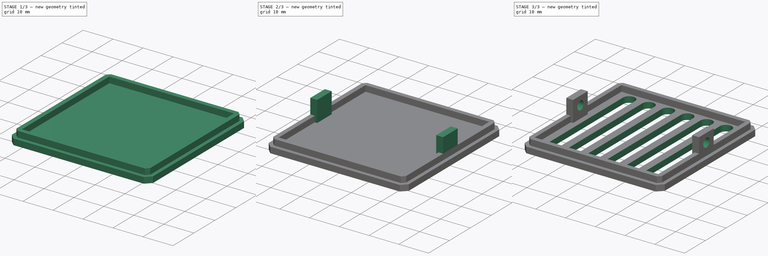
[diagram: build sequence overview — one tinted view per stage of 3, left to right]
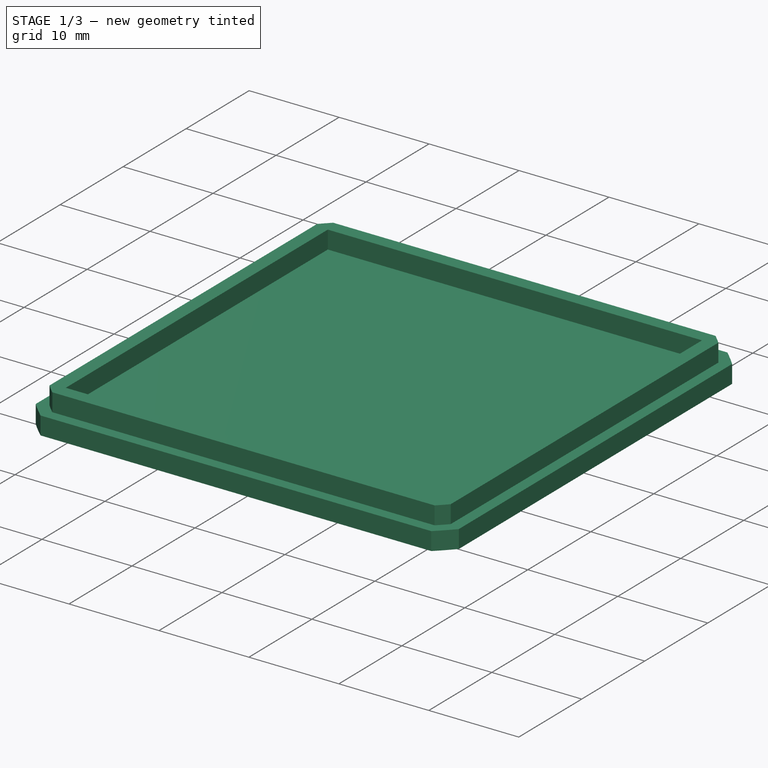
[diagram: stage 1 of 3 — iso view after this stage's code; geometry added in this stage tinted green]
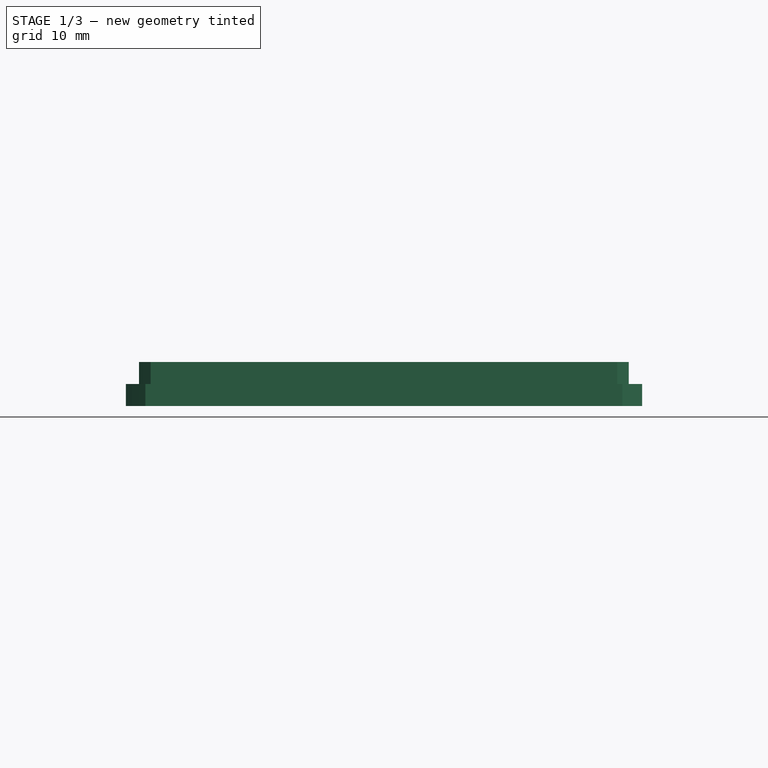
[diagram: stage 1 of 3 — front view after this stage's code; geometry added in this stage tinted green]
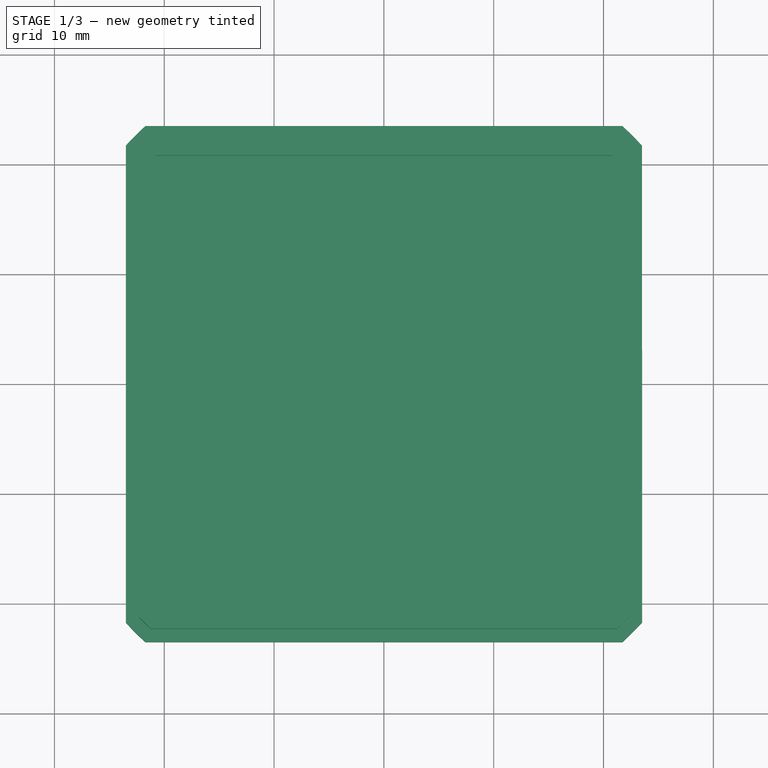
[diagram: stage 1 of 3 — top view after this stage's code; geometry added in this stage tinted green]
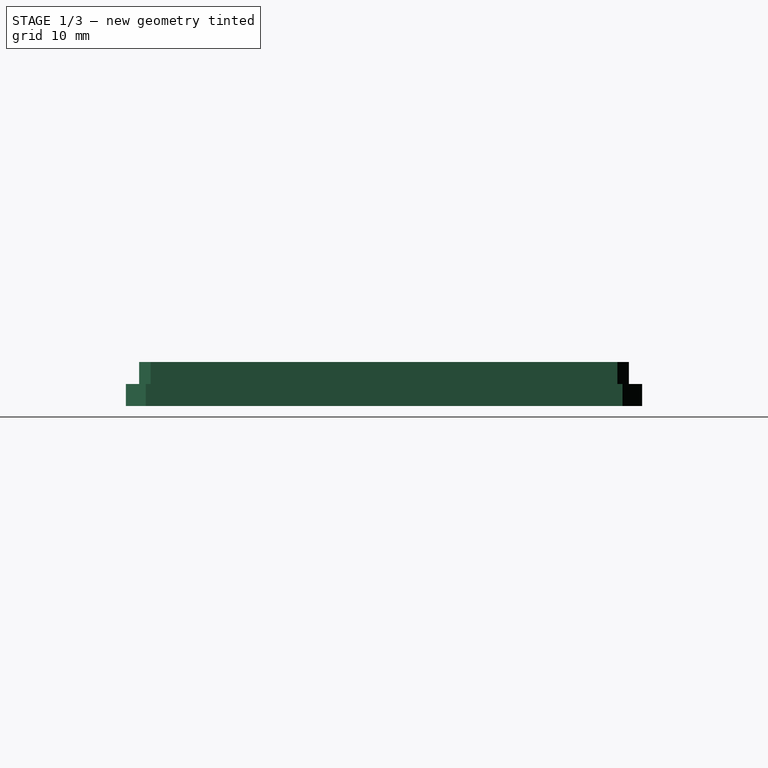
[diagram: stage 1 of 3 — right view after this stage's code; geometry added in this stage tinted green]
FCSTD DOCUMENT  (FreeCAD 0.19R)
Label: cover
License: All rights reserved
LicenseURL: http://en.wikipedia.org/wiki/All_rights_reserved
objects: Sketcher::SketchObject×5, PartDesign::Pad×3, PartDesign::Pocket×2, PartDesign::Body×1
note: 16 computed .brp shape members not serialized (recipe doc carries the construction recipe); baked Part::Feature solids carry a one-line shape summary decoded from their .brp

FEATURE [Sketcher::SketchObject] Sketch
  FullyConstrained = false
  MapMode = 5
  Support = -> [XY_Plane]
  sketch-geometry (8):
    g0: LineSegment StartX=-23.5 StartY=21.7198 StartZ=0 EndX=-23.5 EndY=-21.7198 EndZ=0
    g1: LineSegment StartX=-21.7198 StartY=23.5 StartZ=0 EndX=21.7198 EndY=23.5 EndZ=0
    g2: LineSegment StartX=23.5 StartY=21.7198 StartZ=0 EndX=23.5197 EndY=-21.6985 EndZ=0
    g3: LineSegment StartX=-21.7198 StartY=-23.5 StartZ=0 EndX=21.7198 EndY=-23.5 EndZ=0
    g4: ArcOfCircle CenterX=0 CenterY=0 CenterZ=0 NormalX=0 NormalY=0 NormalZ=1 AngleXU=0 Radius=32 StartAngle=5.45844 EndAngle=5.53804
    g5: ArcOfCircle CenterX=0 CenterY=0 CenterZ=0 NormalX=0 NormalY=0 NormalZ=1 AngleXU=0 Radius=32 StartAngle=3.88764 EndAngle=3.96634
    g6: ArcOfCircle CenterX=0 CenterY=0 CenterZ=0 NormalX=0 NormalY=0 NormalZ=1 AngleXU=0 Radius=32 StartAngle=2.31685 EndAngle=2.39554
    g7: ArcOfCircle CenterX=0 CenterY=0 CenterZ=0 NormalX=0 NormalY=0 NormalZ=1 AngleXU=0 Radius=32 StartAngle=0.746051 EndAngle=0.824745
  constraints (21):
    c: Coincident(g4,g2)
    c: Coincident(g4,g3)
    c: Coincident(g5,g3)
    c: Coincident(g5,g0)
    c: Coincident(g6,g-1)
    c: Coincident(g6,g1)
    c: Coincident(g6,g0)
    c: Coincident(g7,g6)
    c: Coincident(g7,g1)
    c: Coincident(g7,g2)
    c: Coincident(g4,g6)
    c: Coincident(g5,g4)
    c: Radius(g5) = 32
    c: Equal(g5,g4)
    c: DistanceX(g0,g2) = 47
    c: DistanceY(g3,g1) = 47
    c: Symmetric(g2,g0,g-2)
    c: Symmetric(g1,g3,g-1)
    c: Horizontal(g1)
    c: Horizontal(g3)
    c: Vertical(g0)
FEATURE [PartDesign::Pad] Pad
  Direction = (1,1,1)
  Length = 2
  Length2 = 100
  Profile = -> Sketch
  Type = 0
FEATURE [Sketcher::SketchObject] Sketch001
  FullyConstrained = true
  MapMode = 5
  Placement = pos=(0,0,2) rot=(0,0,1;0rad)
  Support = -> [Pad]
  sketch-geometry (12):
    g0: LineSegment StartX=-22.3 StartY=21.245 StartZ=0 EndX=-22.3 EndY=-21.245 EndZ=0
    g1: LineSegment StartX=22.3 StartY=21.245 StartZ=0 EndX=22.3 EndY=-21.245 EndZ=0
    g2: LineSegment StartX=-21.245 StartY=22.3 StartZ=0 EndX=21.245 EndY=22.3 EndZ=0
    g3: LineSegment StartX=-21.245 StartY=-22.3 StartZ=0 EndX=21.245 EndY=-22.3 EndZ=0
    g4: ArcOfCircle CenterX=0 CenterY=0 CenterZ=0 NormalX=0 NormalY=0 NormalZ=1 AngleXU=0 Radius=30.8 StartAngle=0.761175 EndAngle=0.809621
    g5: ArcOfCircle CenterX=0 CenterY=0 CenterZ=0 NormalX=0 NormalY=0 NormalZ=1 AngleXU=0 Radius=30.8 StartAngle=2.33197 EndAngle=2.38042
    g6: ArcOfCircle CenterX=0 CenterY=0 CenterZ=0 NormalX=0 NormalY=0 NormalZ=1 AngleXU=0 Radius=30.8 StartAngle=3.90277 EndAngle=3.95121
    g7: ArcOfCircle CenterX=0 CenterY=0 CenterZ=0 NormalX=0 NormalY=0 NormalZ=1 AngleXU=0 Radius=30.8 StartAngle=5.47356 EndAngle=5.52201
    g8: LineSegment StartX=20.8 StartY=20.8 StartZ=0 EndX=20.8 EndY=-20.8 EndZ=0
    g9: LineSegment StartX=20.8 StartY=20.8 StartZ=0 EndX=-20.8 EndY=20.8 EndZ=0
    g10: LineSegment StartX=-20.8 StartY=20.8 StartZ=0 EndX=-20.8 EndY=-20.8 EndZ=0
    g11: LineSegment StartX=-20.8 StartY=-20.8 StartZ=0 EndX=20.8 EndY=-20.8 EndZ=0
  constraints (32):
    c: Vertical(g0)
    c: Vertical(g1)
    c: Symmetric(g1,g0,g-2)
    c: Horizontal(g2)
    c: Horizontal(g3)
    c: Symmetric(g2,g3,g-1)
    c: DistanceX(g0,g1) = 44.6
    c: DistanceY(g3,g2) = 44.6
    c: Coincident(g4,g-1)
    c: Coincident(g4,g2)
    c: Coincident(g4,g1)
    c: Coincident(g5,g4)
    c: Coincident(g5,g2)
    c: Coincident(g5,g0)
    c: Coincident(g6,g4)
    c: Coincident(g6,g0)
    c: Coincident(g6,g3)
    c: Coincident(g7,g4)
    c: Coincident(g7,g1)
    c: Coincident(g7,g3)
    c: Radius(g5) = 30.8
    c: Equal(g4,g5)
    c: Coincident(g9,g8)
    c: Coincident(g10,g9)
    c: Vertical(g10)
    c: Coincident(g11,g10)
    c: Coincident(g11,g8)
    c: Horizontal(g11)
    c: Symmetric(g8,g8,g-1)
    c: Symmetric(g8,g9,g-2)
    c: DistanceX(g9,g9) = 41.6
    c: DistanceY(g8,g8) = 41.6
FEATURE [PartDesign::Pad] Pad001
  BaseFeature = -> Pad
  Direction = (1,1,1)
  Length = 2
  Length2 = 100
  Profile = -> Sketch001
  Type = 0
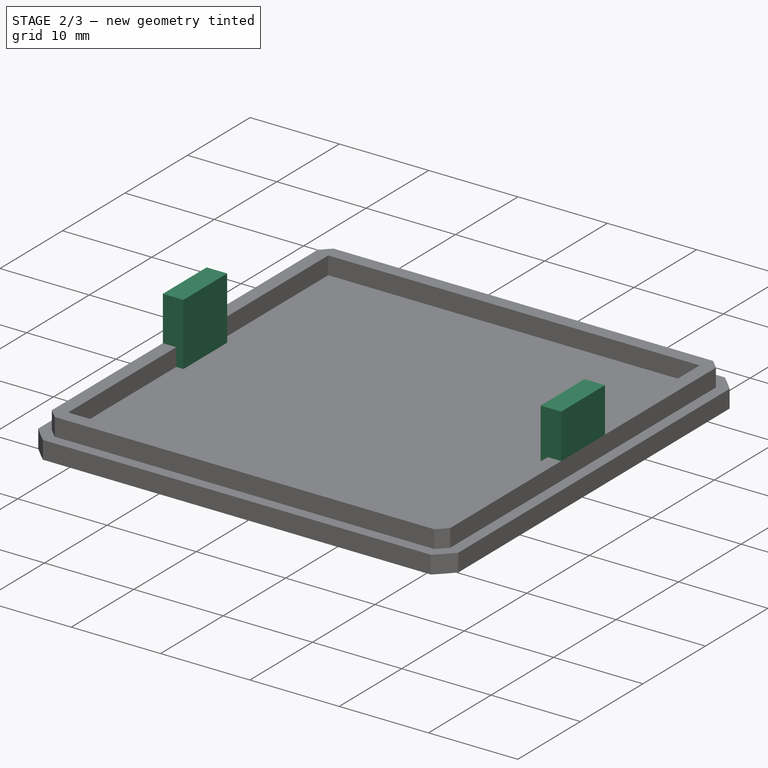
[diagram: stage 2 of 3 — iso view after this stage's code; geometry added in this stage tinted green]
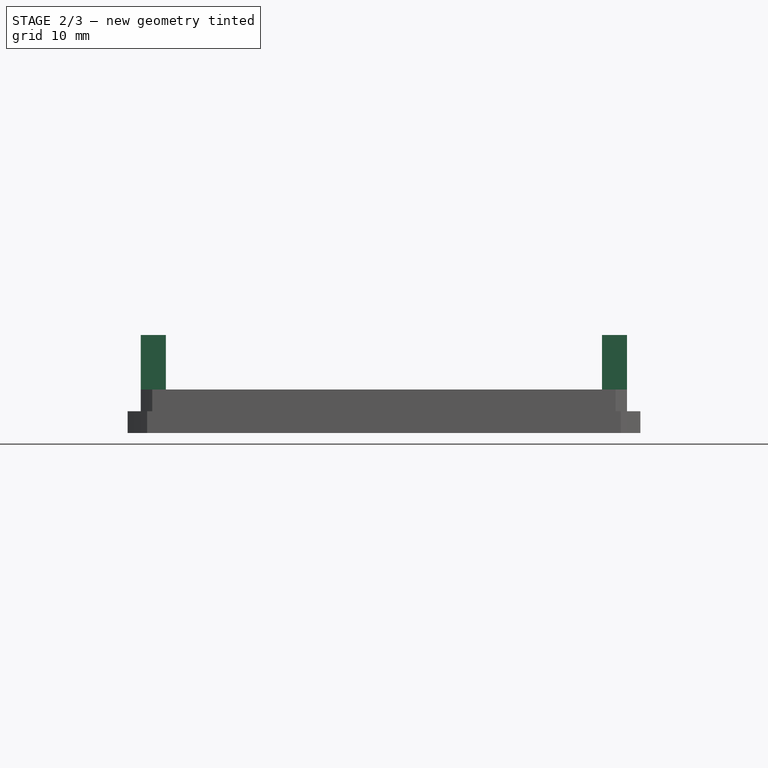
[diagram: stage 2 of 3 — front view after this stage's code; geometry added in this stage tinted green]
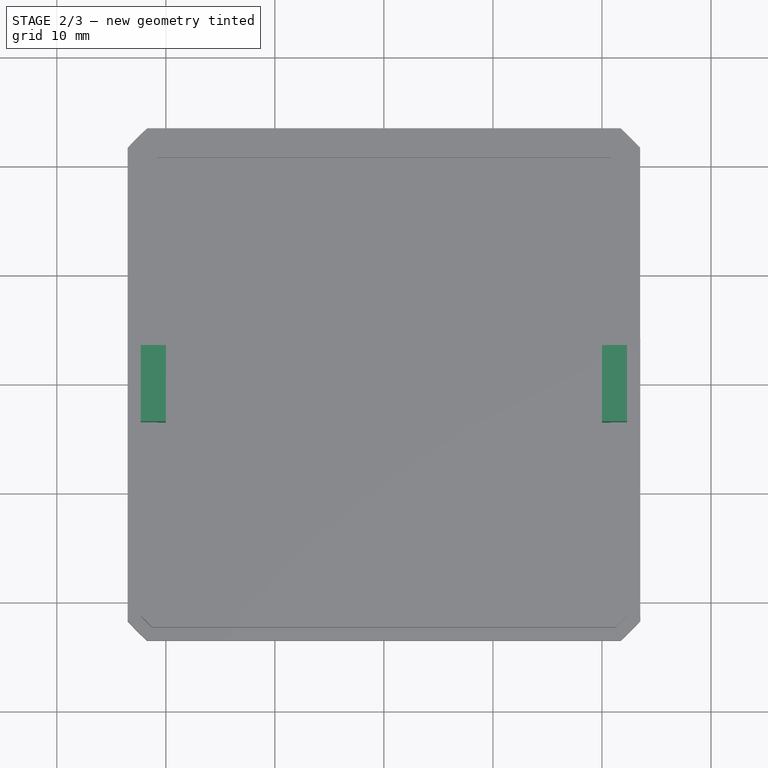
[diagram: stage 2 of 3 — top view after this stage's code; geometry added in this stage tinted green]
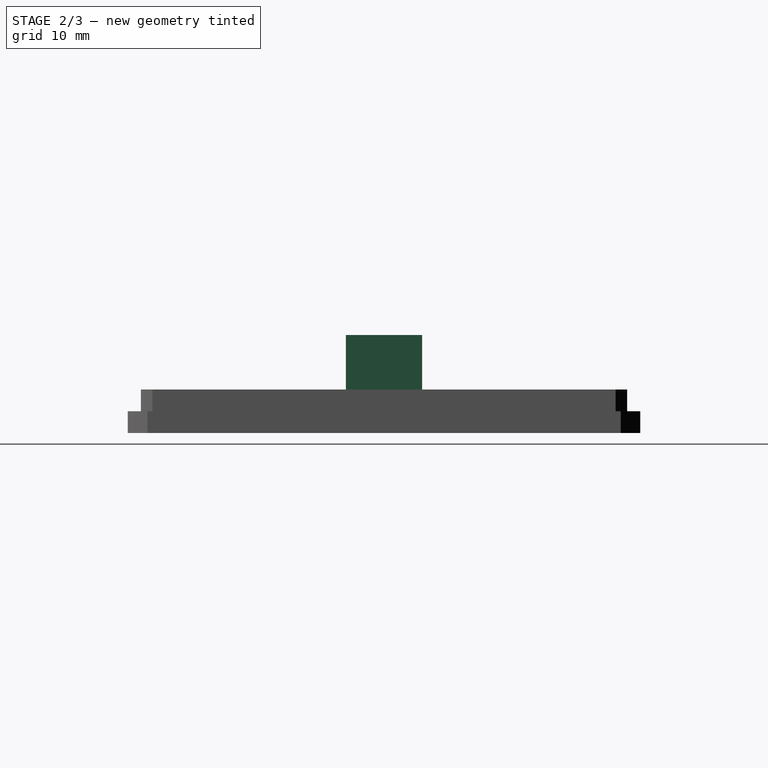
[diagram: stage 2 of 3 — right view after this stage's code; geometry added in this stage tinted green]
FEATURE [Sketcher::SketchObject] Sketch002
  FullyConstrained = true
  MapMode = 5
  Placement = pos=(0,0,2) rot=(0,0,1;0rad)
  Support = -> [Pad001]
  sketch-geometry (8):
    g0: LineSegment StartX=-22.3 StartY=3.5 StartZ=0 EndX=-20 EndY=3.5 EndZ=0
    g1: LineSegment StartX=-20 StartY=3.5 StartZ=0 EndX=-20 EndY=-3.5 EndZ=0
    g2: LineSegment StartX=-20 StartY=-3.5 StartZ=0 EndX=-22.3 EndY=-3.5 EndZ=0
    g3: LineSegment StartX=-22.3 StartY=-3.5 StartZ=0 EndX=-22.3 EndY=3.5 EndZ=0
    g4: LineSegment StartX=20 StartY=3.5 StartZ=0 EndX=22.3 EndY=3.5 EndZ=0
    g5: LineSegment StartX=22.3 StartY=3.5 StartZ=0 EndX=22.3 EndY=-3.5 EndZ=0
    g6: LineSegment StartX=22.3 StartY=-3.5 StartZ=0 EndX=20 EndY=-3.5 EndZ=0
    g7: LineSegment StartX=20 StartY=-3.5 StartZ=0 EndX=20 EndY=3.5 EndZ=0
  constraints (22):
    c: Coincident(g0,g1)
    c: Coincident(g1,g2)
    c: Coincident(g2,g3)
    c: Coincident(g3,g0)
    c: Horizontal(g0)
    c: Horizontal(g2)
    c: Vertical(g1)
    c: Vertical(g3)
    c: Coincident(g4,g5)
    c: Coincident(g5,g6)
    c: Coincident(g6,g7)
    c: Coincident(g7,g4)
    c: Horizontal(g4)
    c: Horizontal(g6)
    c: Vertical(g7)
    c: Symmetric(g5,g4,g-1)
    c: Symmetric(g4,g0,g-2)
    c: Horizontal(g1,g6)
    c: DistanceX(g0,g4) = 44.6
    c: DistanceX(g0,g4) = 40
    c: Equal(g4,g0)
    c: DistanceY(g5,g5) = 7
FEATURE [PartDesign::Pad] Pad002
  BaseFeature = -> Pad001
  Direction = (1,1,1)
  Length = 7
  Length2 = 100
  Profile = -> Sketch002
  Type = 0
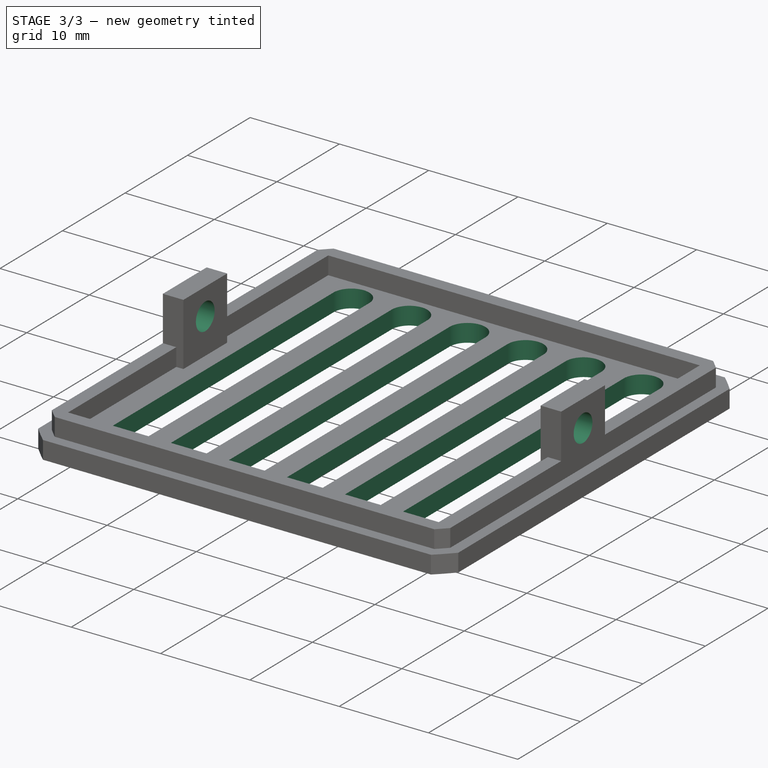
[diagram: stage 3 of 3 — iso view after this stage's code; geometry added in this stage tinted green]
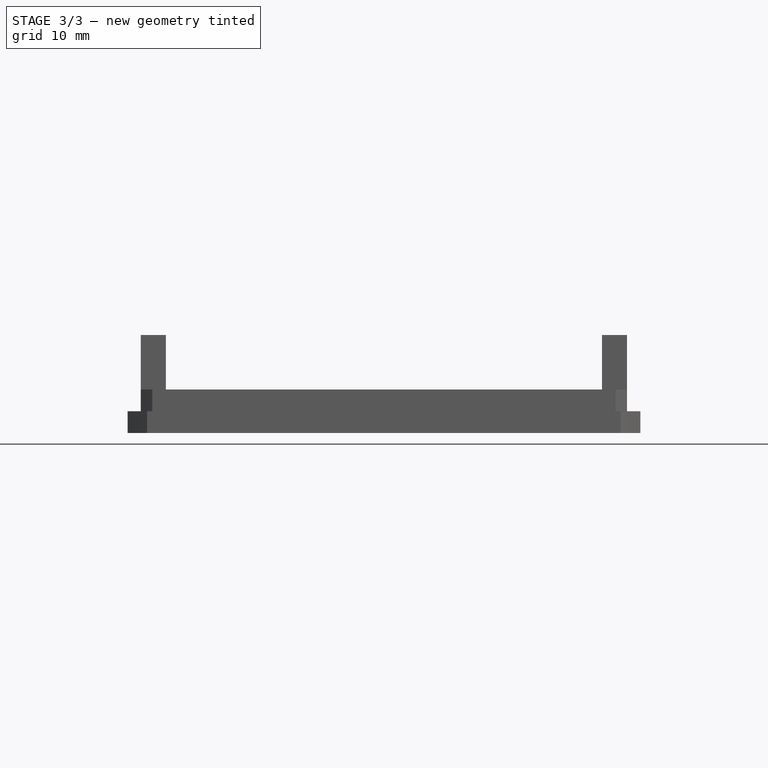
[diagram: stage 3 of 3 — front view after this stage's code; geometry added in this stage tinted green]
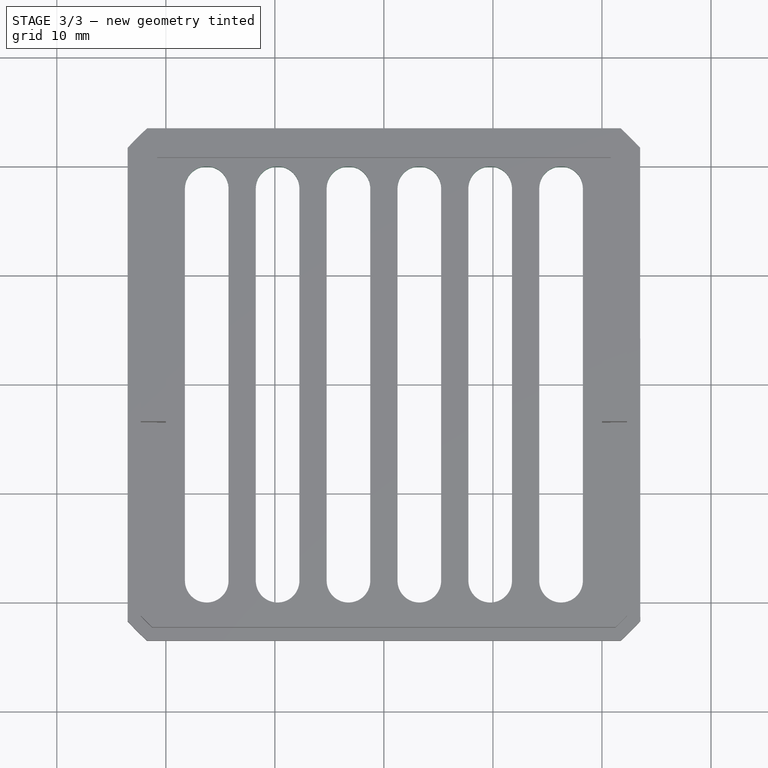
[diagram: stage 3 of 3 — top view after this stage's code; geometry added in this stage tinted green]
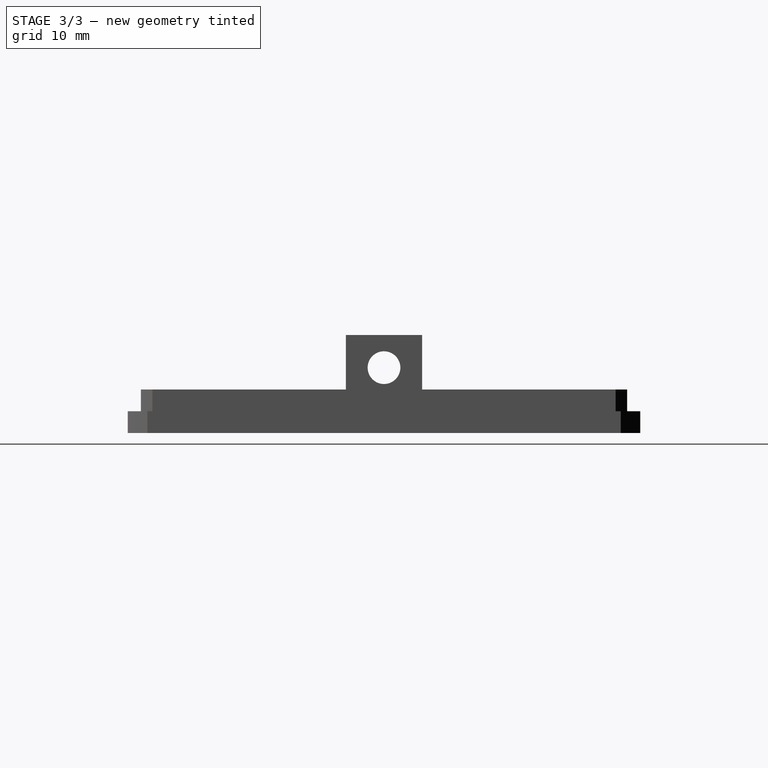
[diagram: stage 3 of 3 — right view after this stage's code; geometry added in this stage tinted green]
FEATURE [Sketcher::SketchObject] Sketch003
  FullyConstrained = true
  MapMode = 5
  Placement = pos=(-22.3,0,0) rot=(0.57735,-0.57735,-0.57735;2.0944rad)
  Support = -> [Pad002]
  sketch-geometry (1):
    g0: Circle CenterX=0 CenterY=6 CenterZ=0 NormalX=0 NormalY=0 NormalZ=1 AngleXU=0 Radius=1.5
  constraints (3):
    c: PointOnObject(g0,g-2)
    c: Radius(g0) = 1.5
    c: DistanceY(g-1,g0) = 6
FEATURE [PartDesign::Pocket] Pocket
  BaseFeature = -> Pad002
  Length = 5
  Length2 = 100
  Profile = -> Sketch003
  Type = 1
FEATURE [Sketcher::SketchObject] Sketch004
  FullyConstrained = true
  MapMode = 5
  Placement = pos=(0,0,2) rot=(0,0,1;0rad)
  Support = -> [Pocket]
  sketch-geometry (29):
    g0: LineSegment StartX=-1.25 StartY=18 StartZ=0 EndX=-1.25 EndY=-18 EndZ=0
    g1: LineSegment StartX=-5.25 StartY=18 StartZ=0 EndX=-5.25 EndY=-18 EndZ=0
    g2: LineSegment StartX=-7.75 StartY=18 StartZ=0 EndX=-7.75 EndY=-18 EndZ=0
    g3: LineSegment StartX=-11.75 StartY=18 StartZ=0 EndX=-11.75 EndY=-18 EndZ=0
    g4: LineSegment StartX=-14.25 StartY=18 StartZ=0 EndX=-14.25 EndY=-18 EndZ=0
    g5: LineSegment StartX=-18.25 StartY=18 StartZ=0 EndX=-18.25 EndY=-18 EndZ=0
    g6: LineSegment StartX=1.25 StartY=18 StartZ=0 EndX=1.25 EndY=-18 EndZ=0
    g7: LineSegment StartX=5.25 StartY=18 StartZ=0 EndX=5.25 EndY=-18 EndZ=0
    g8: LineSegment StartX=7.75 StartY=18 StartZ=0 EndX=7.75 EndY=-18 EndZ=0
    g9: LineSegment StartX=11.75 StartY=18 StartZ=0 EndX=11.75 EndY=-18 EndZ=0
    g10: LineSegment StartX=14.25 StartY=18 StartZ=0 EndX=14.25 EndY=-18 EndZ=0
    g11: LineSegment StartX=18.25 StartY=18 StartZ=0 EndX=18.25 EndY=-18 EndZ=0
    g12: ArcOfCircle CenterX=-16.25 CenterY=18 CenterZ=0 NormalX=0 NormalY=0 NormalZ=1 AngleXU=0 Radius=2 StartAngle=0 EndAngle=3.14159
    g13: ArcOfCircle CenterX=-9.75 CenterY=18 CenterZ=0 NormalX=0 NormalY=0 NormalZ=1 AngleXU=0 Radius=2 StartAngle=0 EndAngle=3.14159
    g14: ArcOfCircle CenterX=-3.25 CenterY=18 CenterZ=0 NormalX=0 NormalY=0 NormalZ=1 AngleXU=0 Radius=2 StartAngle=0 EndAngle=3.14159
    g15: ArcOfCircle CenterX=3.25 CenterY=18 CenterZ=0 NormalX=0 NormalY=0 NormalZ=1 AngleXU=0 Radius=2 StartAngle=3e-16 EndAngle=3.14159
    g16: ArcOfCircle CenterX=9.75 CenterY=18 CenterZ=0 NormalX=0 NormalY=0 NormalZ=1 AngleXU=0 Radius=2 StartAngle=0 EndAngle=3.14159
    g17: ArcOfCircle CenterX=16.25 CenterY=18 CenterZ=0 NormalX=0 NormalY=0 NormalZ=1 AngleXU=0 Radius=2 StartAngle=0 EndAngle=3.14159
    g18: ArcOfCircle CenterX=-16.25 CenterY=-18 CenterZ=0 NormalX=0 NormalY=0 NormalZ=1 AngleXU=0 Radius=2 StartAngle=3.14159 EndAngle=6.28319
    g19: ArcOfCircle CenterX=-9.75 CenterY=-18 CenterZ=0 NormalX=0 NormalY=0 NormalZ=1 AngleXU=0 Radius=2 StartAngle=3.14159 EndAngle=6.28319
    g20: ArcOfCircle CenterX=-3.25 CenterY=-18 CenterZ=0 NormalX=0 NormalY=0 NormalZ=1 AngleXU=0 Radius=2 StartAngle=3.14159 EndAngle=6.28319
    g21: ArcOfCircle CenterX=3.25 CenterY=-18 CenterZ=0 NormalX=0 NormalY=0 NormalZ=1 AngleXU=0 Radius=2 StartAngle=3.14159 EndAngle=6.28319
    g22: ArcOfCircle CenterX=9.75 CenterY=-18 CenterZ=0 NormalX=0 NormalY=0 NormalZ=1 AngleXU=0 Radius=2 StartAngle=3.14159 EndAngle=6.28319
    g23: ArcOfCircle CenterX=16.25 CenterY=-18 CenterZ=0 NormalX=0 NormalY=0 NormalZ=1 AngleXU=0 Radius=2 StartAngle=3.14159 EndAngle=6.28319
    g24: LineSegment StartX=-14.25 StartY=-18 StartZ=0 EndX=-11.75 EndY=-18 EndZ=0
    g25: LineSegment StartX=-7.75 StartY=-18 StartZ=0 EndX=-5.25 EndY=-18 EndZ=0
    g26: LineSegment StartX=-1.25 StartY=-18 StartZ=0 EndX=1.25 EndY=-18 EndZ=0
    g27: LineSegment StartX=5.25 StartY=-18 StartZ=0 EndX=7.75 EndY=-18 EndZ=0
    g28: LineSegment StartX=11.75 StartY=-18 StartZ=0 EndX=14.25 EndY=-18 EndZ=0
  constraints (92):
    c: Vertical(g0)
    c: Vertical(g1)
    c: Vertical(g2)
    c: Vertical(g3)
    c: Vertical(g4)
    c: Vertical(g5)
    c: Vertical(g6)
    c: Vertical(g7)
    c: Vertical(g8)
    c: Vertical(g9)
    c: Vertical(g10)
    c: Coincident(g12,g5)
    c: Coincident(g12,g4)
    c: Coincident(g13,g3)
    c: Coincident(g13,g2)
    c: Coincident(g14,g1)
    c: Coincident(g14,g0)
    c: Coincident(g15,g6)
    c: Coincident(g15,g7)
    c: Coincident(g16,g8)
    c: Coincident(g16,g9)
    c: Coincident(g17,g10)
    c: Coincident(g17,g11)
    c: Coincident(g18,g4)
    c: Coincident(g18,g5)
    c: Coincident(g19,g2)
    c: Coincident(g19,g3)
    c: Coincident(g20,g0)
    c: Coincident(g20,g1)
    c: Coincident(g21,g7)
    c: Coincident(g21,g6)
    c: Coincident(g22,g9)
    c: Coincident(g22,g8)
    c: Coincident(g23,g11)
    c: Coincident(g23,g10)
    c: Symmetric(g11,g11,g-1)
    c: Horizontal(g11,g17)
    c: Horizontal(g17,g10)
    c: Horizontal(g9,g16)
    c: Horizontal(g16,g8)
    c: Horizontal(g7,g15)
    c: Horizontal(g15,g6)
    c: Horizontal(g0,g14)
    c: Horizontal(g14,g1)
    c: Horizontal(g2,g13)
    c: Horizontal(g13,g3)
    c: Horizontal(g4,g12)
    c: Horizontal(g12,g5)
    c: Equal(g17,g16)
    c: Equal(g16,g15)
    c: Equal(g15,g14)
    c: Equal(g14,g13)
    c: Equal(g13,g12)
    c: Coincident(g24,g4)
    c: Coincident(g24,g3)
    c: Horizontal(g24)
    c: Coincident(g25,g2)
    c: Coincident(g25,g1)
    c: Horizontal(g25)
    c: Coincident(g26,g0)
    c: Coincident(g26,g6)
    c: Horizontal(g26)
    c: Coincident(g27,g7)
    c: Coincident(g27,g8)
    c: Horizontal(g27)
    c: Coincident(g28,g9)
    c: Coincident(g28,g10)
    c: Horizontal(g28)
    c: Symmetric(g6,g0,g-2)
    c: Horizontal(g11,g23)
    c: Horizontal(g23,g10)
    c: Horizontal(g9,g22)
    c: Horizontal(g22,g8)
    c: Horizontal(g7,g21)
    c: Horizontal(g21,g6)
    c: Horizontal(g0,g20)
    c: Horizontal(g20,g1)
    c: Horizontal(g2,g19)
    c: Horizontal(g19,g3)
    c: Horizontal(g4,g18)
    c: Horizontal(g18,g5)
    c: Horizontal(g10,g9)
    c: Horizontal(g8,g7)
    c: Horizontal(g1,g2)
    c: Horizontal(g3,g4)
    c: Equal(g28,g27)
    c: Equal(g27,g26)
    c: Equal(g26,g25)
    c: Equal(g25,g24)
    c: Radius(g17) = 2
    c: DistanceX(g28,g28) = 2.5
    c: DistanceY(g11,g11) = 36
FEATURE [PartDesign::Pocket] Pocket001
  BaseFeature = -> Pocket
  Length = 5
  Length2 = 100
  Profile = -> Sketch004
  Type = 1
FEATURE [PartDesign::Body] Body
  Group = -> [Sketch,Pad,Sketch001,Pad001,Sketch002,Pad002,Sketch003,Pocket,Sketch004,Pocket001]
  Origin = -> Origin
  Tip = -> Pocket001
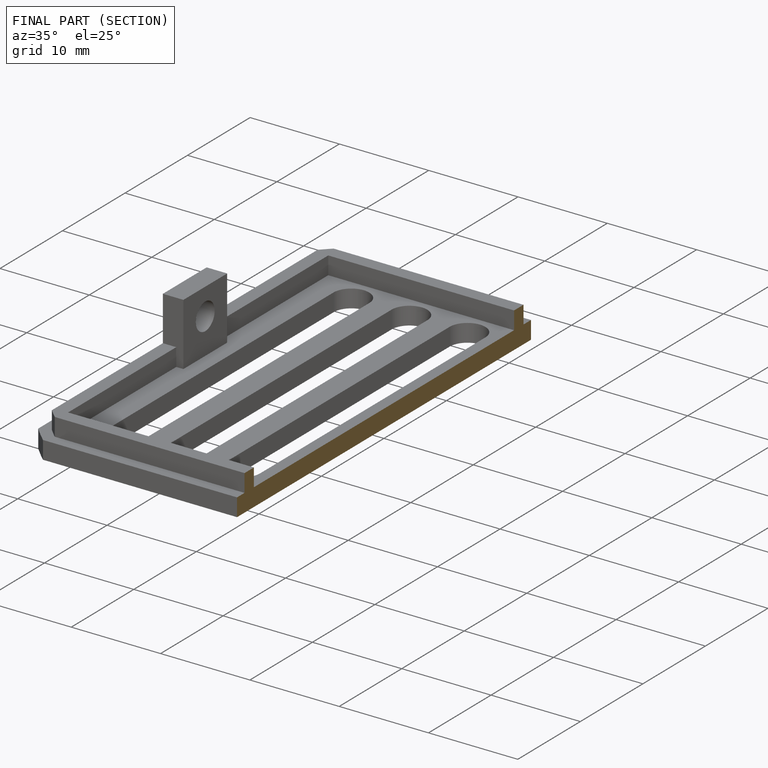
[diagram: finished part — half-section view (interior)]
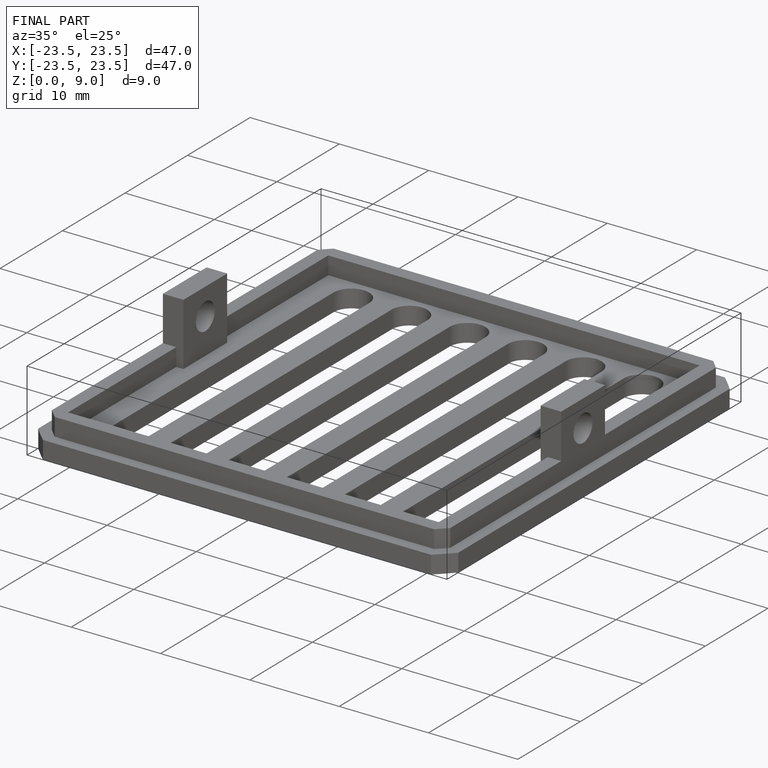
[diagram: finished part — iso view with bounding-box wireframe]
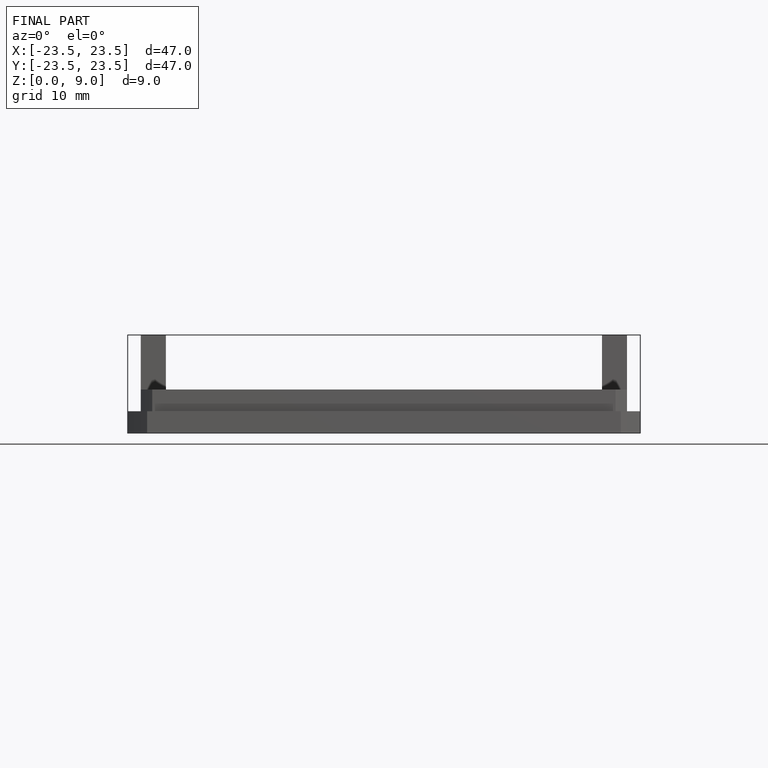
[diagram: finished part — front view with bounding-box wireframe]
